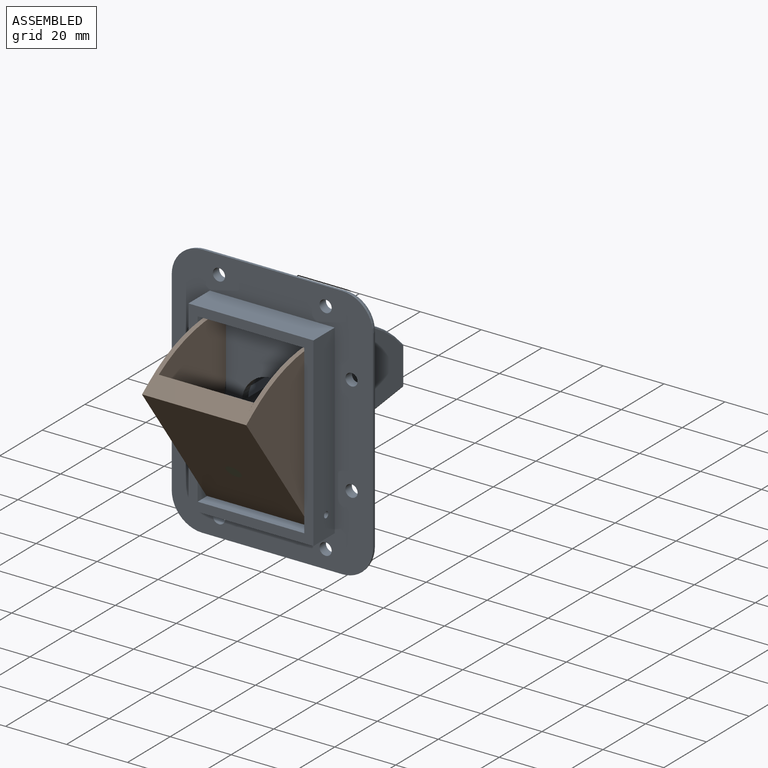
[diagram: assembled view]
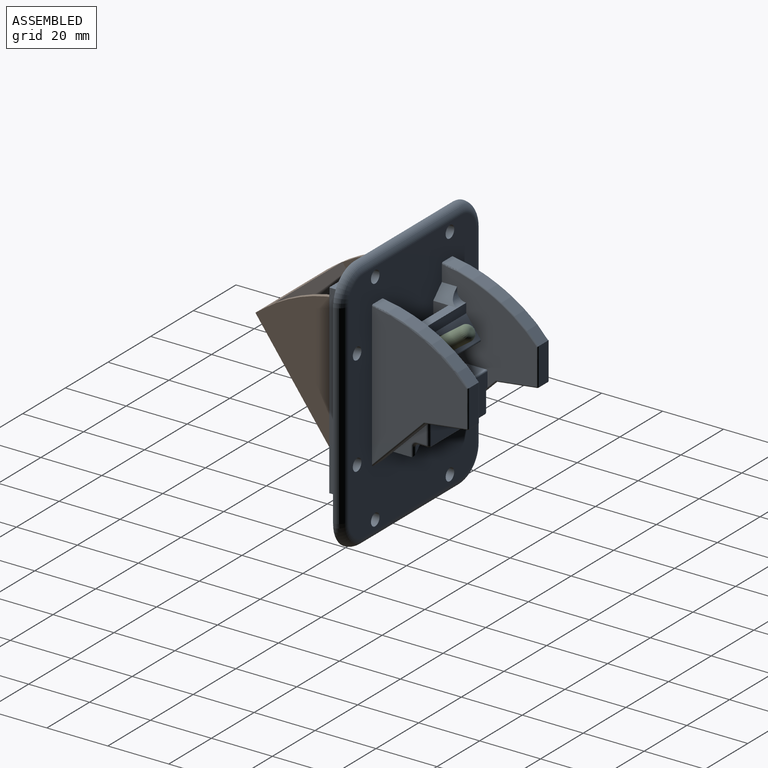
[diagram: assembled view, second angle]
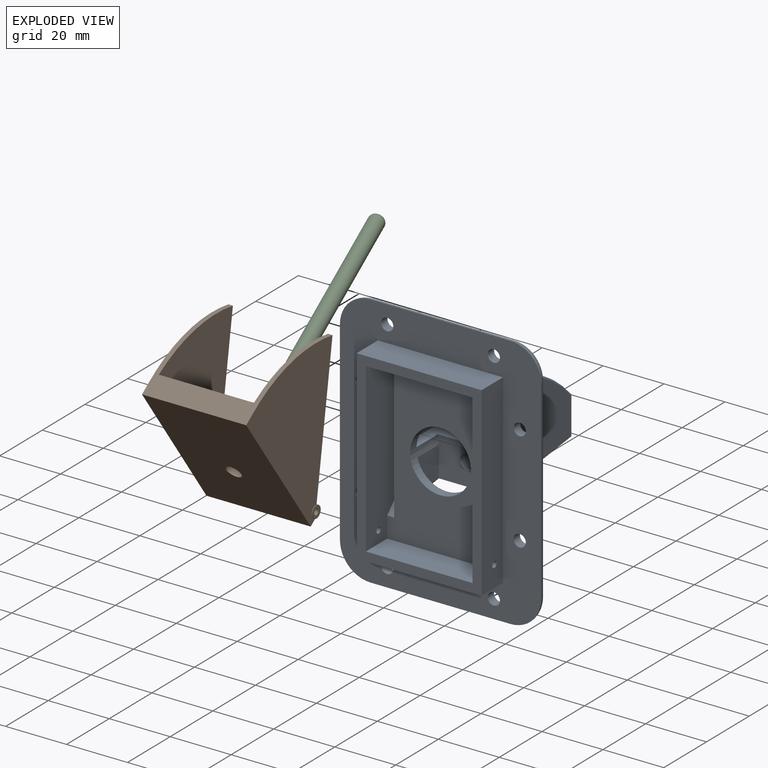
[diagram: exploded view]
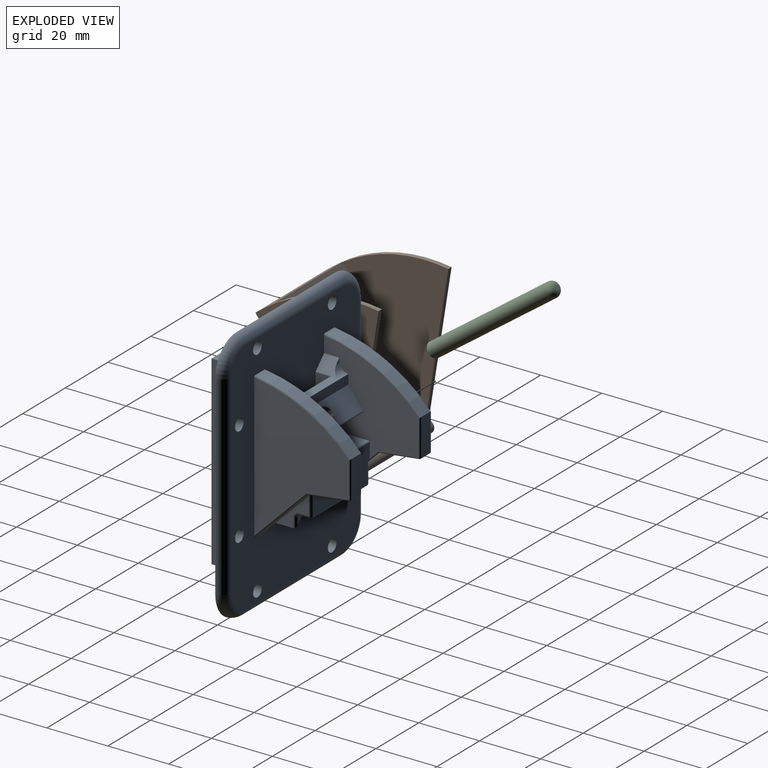
[diagram: exploded view, second angle]
ASSEMBLY  parts=3 mates=2
PART A: 136 faces, bbox 67.7x85.7x47.8 mm
  f0: plane 41x10mm, normal (0,1,0), area 410mm2, adj f1,f3,f42,f127
  f1: plane 61x10mm, normal (-1,0,0), area 606.9mm2, adj f0,f2,f42,f45,f127
  f2: plane 41x10mm, normal (0,-1,0), area 410mm2, adj f1,f3,f42,f127
  f3: plane 61x10mm, normal (1,0,0), area 606.9mm2, adj f0,f2,f42,f44,f127
  f4: plane 32.58x31.22mm, normal (1,0,0), area 572.7mm2, adj f6,f8,f31,f32,f48,f54,f59,f63
  f5: plane 3.24x3.24mm, normal (-1,0,0), area 5.2mm2, adj f6,f9,f98
  f6: plane 78x60mm, normal (0,0,1), area 3498.2mm2, adj f4,f5,f7,f8,f9,f10,f11,f12
  f7: plane 3.24x3.24mm, normal (1,0,0), area 5.2mm2, adj f6,f8,f92
  f8: plane 17.83x17.83mm, normal (0,0.71,0.71), area 117.5mm2, adj f4,f6,f7,f30,f32,f34,f90,f95
  f9: plane 17.83x17.83mm, normal (0,0.71,0.71), area 117.5mm2, adj f5,f6,f12,f14,f16,f18,f86,f95
  f10: cylinder r=52.3mm len=31.57mm, axis (-1,0,0), area 156.3mm2, adj f6,f13,f21,f55
  f11: plane 46.87x31.07mm, normal (1,0,0), area 879.9mm2, adj f6,f18,f20,f21,f23
  f12: plane 32.58x31.22mm, normal (-1,0,0), area 572.7mm2, adj f6,f9,f15,f16,f50,f55,f56,f60
  f13: plane 12.06x4.3mm, normal (0,0,1), area 51.8mm2, adj f10,f15,f19,f23
  f14: plane 13.88x4.3mm, normal (0,0.99,0.13), area 60.2mm2, adj f9,f16,f19,f20
  f15: cylinder r=0.5mm len=12.06mm, axis (0,-1,0), area 9.3mm2, adj f12,f13,f17,f50
  f16: cylinder r=0.5mm len=13.95mm, axis (0,-0.13,0.99), area 10.8mm2, adj f9,f12,f14,f17
  f17: sphere r=0.5mm, area 0.4mm2, adj f15,f16,f19
  f18: cylinder r=0.5mm len=17.73mm, axis (0,-0.71,0.71), area 19.1mm2, adj f6,f9,f11,f20
  f19: cylinder r=0.5mm len=4.3mm, axis (-1,0,0), area 3.1mm2, adj f13,f14,f17,f22
  f20: cylinder r=0.5mm len=14.12mm, axis (0,0.13,-0.99), area 11mm2, adj f11,f14,f18,f22
  f21: torus R=51.8mm, axis (-1,0,0), area 28.4mm2, adj f6,f10,f11,f23
  f22: sphere r=0.5mm, area 0.4mm2, adj f19,f20,f23
  f23: cylinder r=0.5mm len=12.06mm, axis (0,1,0), area 9.4mm2, adj f11,f13,f21,f22
  f24: cylinder r=50.8mm len=32.48mm, axis (1,0,0), area 84.4mm2, adj f25,f51,f52,f53
  f25: plane 32.48x32.48mm, normal (0,-0.71,-0.71), area 105.7mm2, adj f24,f51,f52,f53
  f26: cylinder r=50.8mm len=32.48mm, axis (-1,0,0), area 84.4mm2, adj f27,f46,f49,f51
  f27: plane 32.48x32.48mm, normal (0,-0.71,-0.71), area 105.7mm2, adj f26,f46,f49,f51
  f28: plane 46.87x31.07mm, normal (-1,0,0), area 879.9mm2, adj f6,f34,f36,f37,f39
  f29: plane 12.06x4.3mm, normal (0,0,1), area 51.8mm2, adj f31,f35,f39,f47
  f30: plane 13.88x4.3mm, normal (0,0.99,0.13), area 60.2mm2, adj f8,f32,f35,f36
  f31: cylinder r=0.5mm len=12.06mm, axis (0,-1,0), area 9.3mm2, adj f4,f29,f33,f48
  f32: cylinder r=0.5mm len=13.95mm, axis (0,-0.13,0.99), area 10.8mm2, adj f4,f8,f30,f33
  f33: sphere r=0.5mm, area 0.4mm2, adj f31,f32,f35
  f34: cylinder r=0.5mm len=17.73mm, axis (0,-0.71,0.71), area 19.1mm2, adj f6,f8,f28,f36
  f35: cylinder r=0.5mm len=4.3mm, axis (1,0,0), area 3.1mm2, adj f29,f30,f33,f38
  f36: cylinder r=0.5mm len=14.12mm, axis (0,0.13,-0.99), area 11mm2, adj f28,f30,f34,f38
  f37: torus R=51.8mm, axis (1,0,0), area 28.4mm2, adj f6,f28,f39,f47
  f38: sphere r=0.5mm, area 0.4mm2, adj f35,f36,f39
  f39: cylinder r=0.5mm len=12.06mm, axis (0,1,0), area 9.4mm2, adj f28,f29,f37,f38
  f40: plane 35x10mm, normal (0,1,0), area 350mm2, adj f42,f46,f51,f53
  f41: plane 35x10mm, normal (0,-1,0), area 350mm2, adj f42,f46,f51,f53
  f42: plane 61x41mm, normal (0,0,-1), area 576mm2, adj f0,f1,f2,f3,f40,f41,f46,f53
  f43: cylinder r=10mm len=20mm, axis (0,0,-1), area 249mm2, adj f6,f51,f87,f88,f89,f93,f96
  f44: cylinder r=1mm len=3mm, axis (1,0,0), area 18.8mm2, adj f3,f53
  f45: cylinder r=1mm len=3mm, axis (1,0,0), area 18.8mm2, adj f1,f46
  f46: plane 55x42.48mm, normal (1,0,0), area 1401.7mm2, adj f26,f27,f40,f41,f42,f45,f51
  f47: cylinder r=52.3mm len=31.57mm, axis (1,0,0), area 156.3mm2, adj f6,f29,f37,f54
  f48: plane 0.51x0.51mm, normal (0,0.71,0.71), area 0mm2, adj f4,f31,f54
  f49: plane 47.77x32.48mm, normal (-1,0,0), area 854.9mm2, adj f26,f27,f51
  f50: plane 0.51x0.51mm, normal (0,0.71,0.71), area 0mm2, adj f12,f15,f55
  f51: plane 55x35mm, normal (0,0,-1), area 1391.1mm2, adj f24,f25,f26,f27,f40,f41,f43,f46
  f52: plane 47.77x32.48mm, normal (1,0,0), area 854.9mm2, adj f24,f25,f51
  f53: plane 55x42.48mm, normal (-1,0,0), area 1401.7mm2, adj f24,f25,f40,f41,f42,f44,f51
  f54: torus R=51.8mm, axis (1,0,0), area 28.4mm2, adj f4,f6,f47,f48
  f55: torus R=51.8mm, axis (-1,0,0), area 28.4mm2, adj f6,f10,f12,f50
  f56: plane 11.11x6.83mm, normal (0,1,0), area 40.2mm2, adj f6,f12,f57,f70,f77,f81
  f57: plane 8.37x2.5mm, normal (0,0,-1), area 18.7mm2, adj f56,f70,f75,f81
  f58: plane 9.59x0.27mm, normal (0,0.59,-0.81), area 3mm2, adj f61,f64,f68,f81
  f59: plane 11.2x2.94mm, normal (0,0.59,-0.81), area 40.6mm2, adj f4,f65,f78,f80,f81,f85
  f60: plane 10.7x3.64mm, normal (0,0.81,0.59), area 48.2mm2, adj f12,f77,f82,f83
  f61: cylinder r=3mm len=19.37mm, axis (-1,0,0), area 79.1mm2, adj f58,f62,f64,f70,f75,f81
  f62: plane 19.37x3.45mm, normal (0,0,-1), area 66.8mm2, adj f61,f64,f69,f70
  f63: plane 27.4x3.12mm, normal (0,0,1), area 85.4mm2, adj f4,f12,f69,f73,f74,f76
  f64: plane 10x5mm, normal (1,0,0), area 47.9mm2, adj f6,f58,f61,f62,f65,f67,f68
  f65: plane 11.11x6.83mm, normal (0,1,0), area 40.2mm2, adj f4,f6,f59,f64,f68,f81
  f66: plane 1.02x1.02mm, normal (0,0,1), area 0.5mm2, adj f4,f67,f74
  f67: plane 8x4.02mm, normal (0.71,-0.71,0), area 31.1mm2, adj f4,f6,f64,f66,f69,f74
  f68: plane 8.37x2.5mm, normal (0,0,-1), area 18.7mm2, adj f58,f64,f65,f81
  f69: plane 19.37x3mm, normal (0,-1,0), area 58.1mm2, adj f62,f63,f67,f72
  f70: plane 10x5mm, normal (-1,0,0), area 47.9mm2, adj f6,f56,f57,f61,f62,f72,f75
  f71: plane 1.02x1.02mm, normal (0,0,1), area 0.5mm2, adj f12,f72,f73
  f72: plane 8x4.02mm, normal (-0.71,-0.71,0), area 31.1mm2, adj f6,f12,f69,f70,f71,f73
  f73: cylinder r=3mm len=4.02mm, axis (-1,0,0), area 13.8mm2, adj f12,f63,f71,f72
  f74: cylinder r=3mm len=4.02mm, axis (1,0,0), area 13.8mm2, adj f4,f63,f66,f67
  f75: plane 9.59x0.27mm, normal (0,0.59,-0.81), area 3mm2, adj f57,f61,f70,f81
  f76: plane 27.4x6.48mm, normal (0,-0.59,0.81), area 188.3mm2, adj f4,f12,f63,f79,f80,f81,f82,f84
  f77: plane 11.2x2.94mm, normal (0,0.59,-0.81), area 40.6mm2, adj f12,f56,f60,f79,f81,f83
  f78: plane 10.7x3.64mm, normal (0,0.81,0.59), area 48.2mm2, adj f4,f59,f84,f85
  f79: plane 5.72x5.24mm, normal (-1,0,0), area 14.2mm2, adj f76,f77,f81,f83
  f80: plane 5.72x5.24mm, normal (1,0,0), area 14.2mm2, adj f59,f76,f81,f85
  f81: cylinder r=2.7mm len=7.42mm, axis (0,0.59,-0.81), area 57.8mm2, adj f56,f57,f58,f59,f61,f65,f68,f75
  f82: cylinder r=0.5mm len=11.2mm, axis (1,0,0), area 8.7mm2, adj f12,f60,f76,f83
  f83: cylinder r=0.5mm len=4.34mm, axis (0,-0.59,0.81), area 3.8mm2, adj f60,f77,f79,f82
  f84: cylinder r=0.5mm len=11.2mm, axis (1,0,0), area 8.7mm2, adj f4,f76,f78,f85
  f85: cylinder r=0.5mm len=4.34mm, axis (0,0.59,-0.81), area 3.8mm2, adj f59,f78,f80,f84
  f86: plane 10.77x10.77mm, normal (1,0,0), area 33.7mm2, adj f9,f98,f114,f115,f116,f117
  f87: plane 14.5x10.7mm, normal (0,-1,0), area 85.3mm2, adj f6,f12,f43,f93,f102,f103
  f88: plane 10x10mm, normal (1,0,0), area 100mm2, adj f6,f43,f92,f93
  f89: plane 14.5x10.7mm, normal (0,-1,0), area 85.3mm2, adj f4,f6,f43,f93,f104,f105
  f90: plane 10.77x10.77mm, normal (-1,0,0), area 33.7mm2, adj f8,f92,f107,f109,f110,f111
  f91: plane 2.02x2.02mm, normal (0,0,1), area 2mm2, adj f92,f107,f108
  f92: plane 11x4.02mm, normal (0.71,0.71,0), area 56.8mm2, adj f6,f7,f88,f90,f91,f94,f107,f108
  f93: plane 20x13mm, normal (0,0,-1), area 213.8mm2, adj f43,f87,f88,f89,f94,f96,f99,f100
  f94: plane 25.4x4.5mm, normal (0,1,0), area 108.3mm2, adj f92,f93,f98,f106,f108,f111,f113,f116
  f95: plane 27.4x12mm, normal (0,0,1), area 277.6mm2, adj f4,f8,f9,f12,f99,f100,f101,f102
  f96: plane 10x10mm, normal (-1,0,0), area 100mm2, adj f6,f43,f93,f98
  f97: plane 2.02x2.02mm, normal (0,0,1), area 2mm2, adj f98,f113,f114
  f98: plane 11x4.02mm, normal (-0.71,0.71,0), area 56.8mm2, adj f5,f6,f86,f94,f96,f97,f113,f114
  f99: plane 5x3.98mm, normal (-1,0,0), area 19.9mm2, adj f93,f95,f100,f103
  f100: cylinder r=2.7mm len=5.4mm, axis (0,0,-1), area 52.9mm2, adj f93,f95,f99,f101
  f101: plane 5x3.98mm, normal (1,0,0), area 19.9mm2, adj f93,f95,f100,f105
  f102: cylinder r=0.5mm len=11.2mm, axis (-1,0,0), area 8.7mm2, adj f12,f87,f95,f103
  f103: cylinder r=0.5mm len=5mm, axis (0,0,-1), area 3.8mm2, adj f87,f93,f99,f102
  f104: cylinder r=0.5mm len=11.2mm, axis (-1,0,0), area 8.7mm2, adj f4,f89,f95,f105
  f105: cylinder r=0.5mm len=5mm, axis (0,0,1), area 3.8mm2, adj f89,f93,f101,f104
  f106: cylinder r=0.5mm len=25.4mm, axis (1,0,0), area 19.9mm2, adj f94,f95,f112,f118
  f107: cylinder r=1mm len=3.02mm, axis (0,-1,0), area 4.2mm2, adj f90,f91,f92,f109
  f108: cylinder r=1mm len=3.02mm, axis (1,0,0), area 4.2mm2, adj f91,f92,f94,f109
  f109: torus R=2mm, axis (1,0,0), area 3.4mm2, adj f90,f107,f108,f111
  f110: cylinder r=1mm len=7.25mm, axis (0,1,0), area 10.5mm2, adj f8,f90,f95,f112
  f111: cylinder r=1mm len=3.5mm, axis (0,0,-1), area 5.2mm2, adj f90,f94,f109,f112
  f112: bspline ~1.05x1mm, area 0.8mm2, adj f106,f110,f111
  f113: cylinder r=1mm len=3.02mm, axis (-1,0,0), area 4.2mm2, adj f94,f97,f98,f115
  f114: cylinder r=1mm len=3.02mm, axis (0,-1,0), area 4.2mm2, adj f86,f97,f98,f115
  f115: torus R=2mm, axis (-1,0,0), area 3.4mm2, adj f86,f113,f114,f116
  f116: cylinder r=1mm len=3.5mm, axis (0,0,-1), area 5.2mm2, adj f86,f94,f115,f118
  f117: cylinder r=1mm len=7.25mm, axis (0,1,0), area 10.5mm2, adj f9,f86,f95,f118
  f118: bspline ~1.19x1mm, area 0.8mm2, adj f106,f116,f117
  f119: cylinder r=2mm len=4mm, axis (0,0,-1), area 37.7mm2, adj f6,f127
  f120: cylinder r=2mm len=4mm, axis (0,0,-1), area 37.7mm2, adj f6,f127
  f121: cylinder r=2mm len=4mm, axis (0,0,-1), area 37.7mm2, adj f6,f127
  f122: cylinder r=2mm len=4mm, axis (0,0,-1), area 37.7mm2, adj f6,f127
  f123: cylinder r=2mm len=4mm, axis (0,0,-1), area 37.7mm2, adj f6,f127
  f124: cylinder r=2mm len=4mm, axis (0,0,-1), area 37.7mm2, adj f6,f127
  f125: cylinder r=2mm len=4mm, axis (0,0,-1), area 37.7mm2, adj f6,f127
  f126: cylinder r=2mm len=4mm, axis (0,0,-1), area 37.7mm2, adj f6,f127
  f127: plane 84x66mm, normal (0,0,-1), area 2856.6mm2, adj f0,f1,f2,f3,f119,f120,f121,f122
  f128: cylinder r=3mm len=64mm, axis (0,1,0), area 301.6mm2, adj f6,f127,f129,f130
  f129: torus R=7mm, axis (0,0,1), area 66mm2, adj f6,f127,f128,f131
  f130: torus R=7mm, axis (0,0,1), area 66mm2, adj f6,f127,f128,f132
  f131: cylinder r=3mm len=46mm, axis (-1,0,0), area 216.8mm2, adj f6,f127,f129,f133
  f132: cylinder r=3mm len=46mm, axis (1,0,0), area 216.8mm2, adj f6,f127,f130,f134
  f133: torus R=7mm, axis (0,0,1), area 66mm2, adj f6,f127,f131,f135
  f134: torus R=7mm, axis (0,0,1), area 66mm2, adj f6,f127,f132,f135
  f135: cylinder r=3mm len=64mm, axis (0,-1,0), area 301.6mm2, adj f6,f127,f133,f134
PART B: 24 faces, bbox 34.6x52x39.4 mm
  f0: plane 46.91x32.36mm, normal (-1,0,0), area 836.3mm2, adj f4,f5,f18
  f1: plane 46.91x32.36mm, normal (1,0,0), area 836.3mm2, adj f9,f10,f18
  f2: plane 2x0.59mm, normal (1,0,0), area 0.4mm2, adj f3,f9,f20
  f3: cylinder r=2mm len=34.6mm, axis (1,0,0), area 268.9mm2, adj f2,f4,f6,f7,f8,f9,f11,f12
  f4: plane 33.94x33.94mm, normal (0,0.71,0.71), area 72mm2, adj f0,f3,f5,f6,f7,f16
  f5: cylinder r=50mm len=35.36mm, axis (1,0,0), area 58.9mm2, adj f0,f4,f7,f13,f21
  f6: plane 2x0.59mm, normal (-1,0,0), area 0.4mm2, adj f3,f4,f20
  f7: plane 51.41x39.36mm, normal (1,0,0), area 1180.1mm2, adj f3,f4,f5,f13,f14,f15
  f8: plane 4x4mm, normal (1,0,0), area 9.4mm2, adj f3,f22
  f9: plane 33.94x33.94mm, normal (0,0.71,0.71), area 72mm2, adj f1,f2,f3,f10,f11,f17
  f10: cylinder r=50mm len=35.36mm, axis (-1,0,0), area 58.9mm2, adj f1,f9,f11,f13,f19
  f11: plane 51.41x39.36mm, normal (-1,0,0), area 1180.1mm2, adj f3,f9,f10,f13,f14,f15
  f12: plane 4x4mm, normal (-1,0,0), area 9.4mm2, adj f3,f22
  f13: plane 34.2x7mm, normal (0,-1,0), area 230.4mm2, adj f5,f7,f10,f11,f14,f18,f19,f21
  f14: plane 51.41x34.2mm, normal (0,0,-1), area 1738.7mm2, adj f7,f11,f13,f15,f23
  f15: plane 34.2x2.59mm, normal (0,1,0), area 88.4mm2, adj f3,f7,f11,f14
  f16: plane 1x1mm, normal (1,0,0), area 0.5mm2, adj f4,f18,f20
  f17: plane 1x1mm, normal (-1,0,0), area 0.5mm2, adj f9,f18,f20
  f18: plane 48x31.2mm, normal (0,0,1), area 1478mm2, adj f0,f1,f13,f16,f17,f19,f20,f21
  f19: plane 3x0.09mm, normal (-1,0,0), area 0.1mm2, adj f10,f13,f18
  f20: plane 31.2x3mm, normal (0,1,0), area 93.6mm2, adj f2,f3,f6,f16,f17,f18
  f21: plane 3x0.09mm, normal (1,0,0), area 0.1mm2, adj f5,f13,f18
  f22: cylinder r=1mm len=34.6mm, axis (1,0,0), area 217.4mm2, adj f8,f12
  f23: cylinder r=2.5mm len=7mm, axis (0,0,-1), area 110mm2, adj f14,f18
PART C: 4 faces, bbox 5x5x50 mm
  f0: cylinder r=2.5mm len=48mm, axis (0,0,-1), area 754mm2, adj f2,f3
  f1: plane 1x1mm, normal (0,0,1), area 0.8mm2, adj f3
  f2: plane 5x5mm, normal (0,0,-1), area 19.6mm2, adj f0
  f3: torus R=0.5mm, axis (0,0,1), area 35mm2, adj f0,f1
PLACE A rot(axis=(-1,0,0),90deg) t=(0,5,-30.5)mm
PLACE B rot(axis=(-1,0,0),54deg) t=(0,-9.58,-32.64)mm
PLACE C rot(axis=(-1,0,0),54deg) t=(0,-7.96,-31.46)mm
MATE fastened C.f0 <-> B.f23  axis (0,-0.81,-0.59) through (0,-13.11,-41.38)mm
MATE revolute B.f3 <-> A.f10  axis (1,0,0) through (17.3,1,-54)mm
